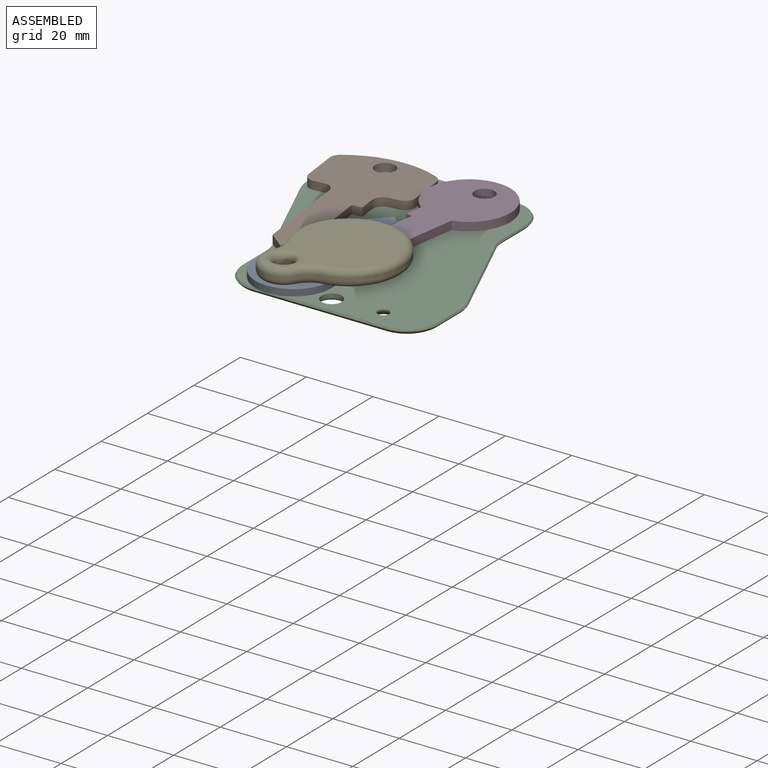
[diagram: assembled view]
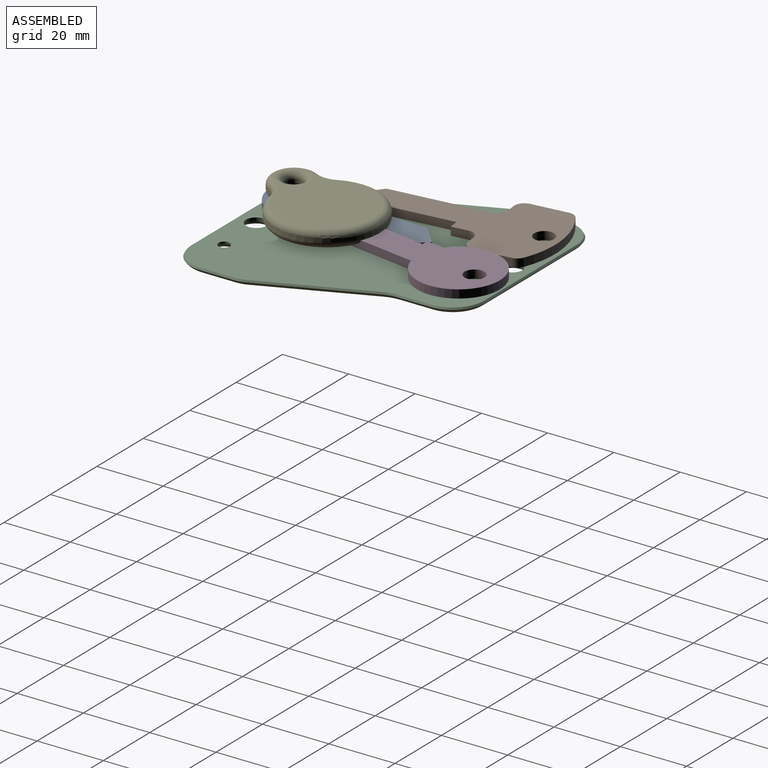
[diagram: assembled view, second angle]
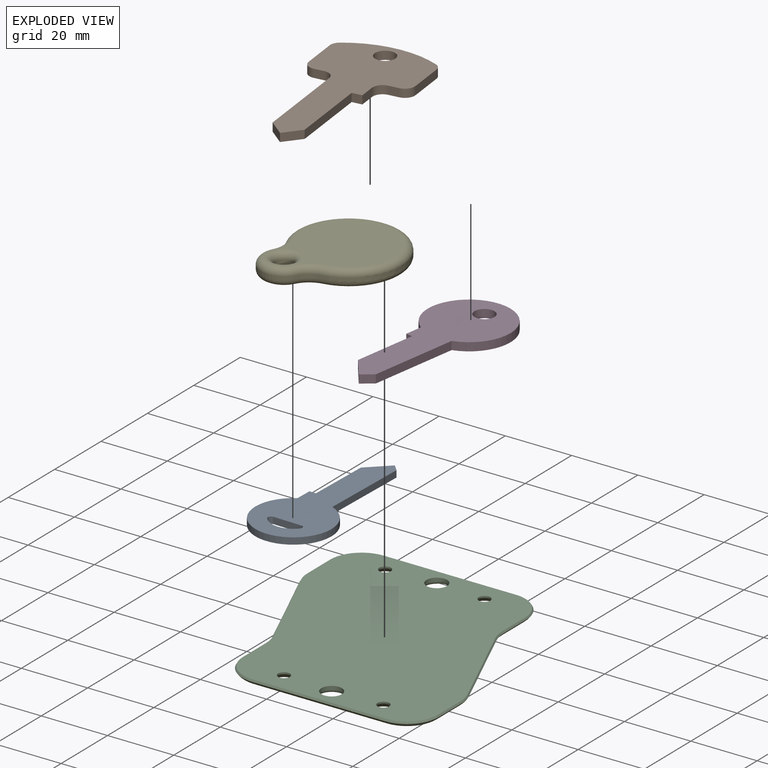
[diagram: exploded view]
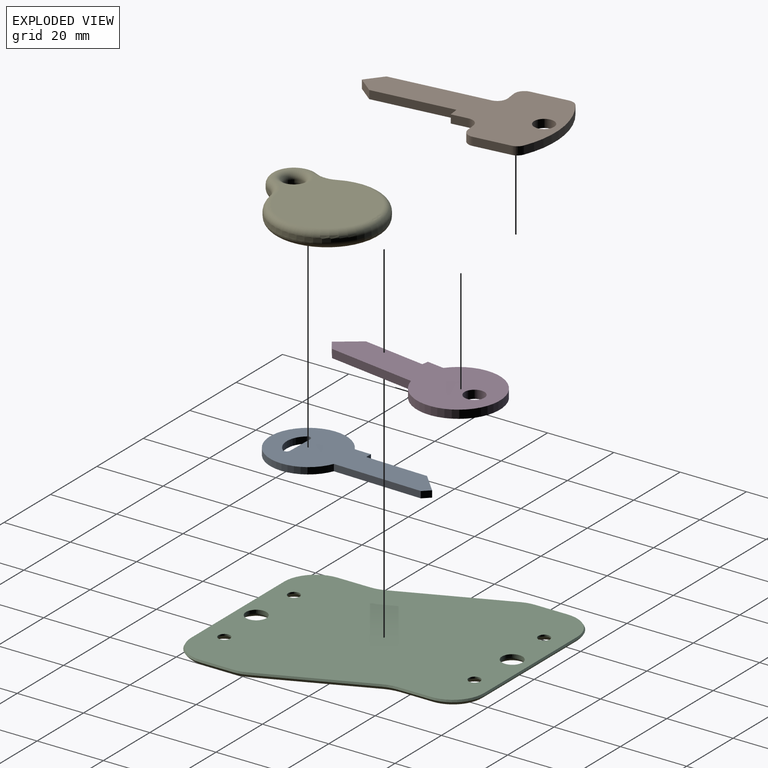
[diagram: exploded view, second angle]
ASSEMBLY  parts=5 mates=6
PART A: 13 faces, bbox 23x51x2 mm
  f0: plane 8.49x2mm, normal (0,1,0), area 17mm2, adj f1,f2,f3,f4
  f1: plane 51x23mm, normal (0,0,-1), area 597.2mm2, adj f0,f2,f3,f5,f6,f7,f8,f9
  f2: cylinder r=1mm len=2mm, axis (0,0,1), area 4.5mm2, adj f0,f1,f4,f5
  f3: cylinder r=1mm len=2mm, axis (0,0,1), area 4.5mm2, adj f0,f1,f4,f5
  f4: plane 51x23mm, normal (0,0,1), area 597.2mm2, adj f0,f2,f3,f5,f6,f7,f8,f9
  f5: cylinder r=6.5mm len=10.03mm, axis (0,0,-1), area 22.9mm2, adj f1,f2,f3,f4
  f6: cylinder r=11.5mm len=23mm, axis (0,0,-1), area 123.7mm2, adj f1,f4,f7,f12
  f7: plane 26.72x2mm, normal (-1,0,0), area 53.4mm2, adj f1,f4,f6,f8
  f8: plane 2x2mm, normal (-0.71,-0.71,0), area 5.7mm2, adj f1,f4,f7,f9
  f9: plane 6x6mm, normal (0.71,-0.71,0), area 17mm2, adj f1,f4,f8,f10
  f10: plane 18.69x2mm, normal (1,0,0), area 37.4mm2, adj f1,f4,f9,f11
  f11: plane 2x2mm, normal (0,-1,0), area 4mm2, adj f1,f4,f10,f12
  f12: plane 5x2mm, normal (1,0,0), area 10mm2, adj f1,f4,f6,f11
PART B: 20 faces, bbox 30x57x2.5 mm
  f0: cylinder r=28mm len=26.88mm, axis (0,0,-1), area 70.1mm2, adj f1,f2,f3,f4
  f1: plane 57x30mm, normal (0,0,-1), area 865.4mm2, adj f0,f2,f3,f5,f6,f7,f8,f9
  f2: cylinder r=3mm len=2.63mm, axis (0,0,1), area 8mm2, adj f0,f1,f4,f5
  f3: cylinder r=3mm len=2.63mm, axis (0,0,1), area 8mm2, adj f0,f1,f4,f6
  f4: plane 57x30mm, normal (0,0,1), area 865.4mm2, adj f0,f2,f3,f5,f6,f7,f8,f9
  f5: plane 10.93x2.5mm, normal (1,0,0), area 27.3mm2, adj f1,f2,f4,f7
  f6: plane 10.93x2.5mm, normal (-1,0,0), area 27.3mm2, adj f1,f3,f4,f8
  f7: cylinder r=3mm len=3mm, axis (0,0,1), area 11.8mm2, adj f1,f4,f5,f9
  f8: cylinder r=3mm len=3mm, axis (0,0,1), area 11.8mm2, adj f1,f4,f6,f10
  f9: plane 3x2.5mm, normal (0,-1,0), area 7.5mm2, adj f1,f4,f7,f11
  f10: plane 3x2.5mm, normal (0,-1,0), area 7.5mm2, adj f1,f4,f8,f12
  f11: cylinder r=3mm len=3mm, axis (0,0,1), area 11.8mm2, adj f1,f4,f9,f13
  f12: cylinder r=3mm len=3mm, axis (0,0,1), area 11.8mm2, adj f1,f4,f10,f14
  f13: plane 5x2.5mm, normal (1,0,0), area 12.5mm2, adj f1,f4,f11,f15
  f14: plane 29.5x2.5mm, normal (-1,0,0), area 73.8mm2, adj f1,f4,f12,f16
  f15: plane 3x2.5mm, normal (0,-1,0), area 7.5mm2, adj f1,f4,f13,f17
  f16: plane 4.5x4.5mm, normal (-0.71,-0.71,0), area 15.9mm2, adj f1,f4,f14,f18
  f17: plane 24.5x2.5mm, normal (1,0,0), area 61.2mm2, adj f1,f4,f15,f18
  f18: plane 4.5x4.5mm, normal (0.71,-0.71,0), area 15.9mm2, adj f1,f4,f16,f17
  f19: cylinder r=3mm len=6mm, axis (0,0,-1), area 47.1mm2, adj f1,f4
PART C: 48 faces, bbox 77x81x3.4 mm
  f0: cylinder r=1.75mm len=3.5mm, axis (0,0,-1), area 5.5mm2, adj f4,f26
  f1: cylinder r=1.75mm len=3.5mm, axis (0,0,-1), area 5.5mm2, adj f4,f27
  f2: cylinder r=1.75mm len=3.5mm, axis (0,0,-1), area 5.5mm2, adj f4,f24
  f3: cylinder r=1.75mm len=3.5mm, axis (0,0,-1), area 5.5mm2, adj f4,f25
  f4: plane 77.89x73.89mm, normal (0,0,1), area 4408.4mm2, adj f0,f1,f2,f3,f6,f7,f32,f33
  f5: plane 73.34x69.34mm, normal (0,0,-1), area 3691.7mm2, adj f8,f9,f10,f11,f12,f13,f14,f15
  f6: cylinder r=3.1mm len=6.2mm, axis (0,0,1), area 19.1mm2, adj f4,f28,f29
  f7: cylinder r=3.1mm len=6.2mm, axis (0,0,1), area 19.1mm2, adj f4,f30,f31
  f8: torus R=7.17mm, axis (0,0,-1), area 41.8mm2, adj f5,f9,f10,f38
  f9: cylinder r=3mm len=40mm, axis (1,0,0), area 120mm2, adj f5,f8,f11,f31,f40
  f10: cylinder r=3mm len=9.95mm, axis (0,-1,0), area 30.9mm2, adj f5,f8,f12,f36
  f11: torus R=7.17mm, axis (0,0,-1), area 41.8mm2, adj f5,f9,f13,f42
  f12: torus R=7.17mm, axis (0,0,-1), area 10.8mm2, adj f5,f10,f14,f34
  f13: cylinder r=3mm len=9.95mm, axis (0,1,0), area 30.9mm2, adj f5,f11,f15,f44
  f14: cylinder r=3mm len=32.24mm, axis (0.39,-0.92,0), area 105.4mm2, adj f5,f12,f16,f32
  f15: torus R=12.83mm, axis (0,0,1), area 14.3mm2, adj f5,f13,f17,f46
  f16: torus R=12.83mm, axis (0,0,1), area 14.3mm2, adj f5,f14,f18,f33
  f17: cylinder r=3mm len=32.24mm, axis (-0.39,0.92,0), area 105.4mm2, adj f5,f15,f19,f47
  f18: cylinder r=3mm len=9.95mm, axis (0,-1,0), area 30.9mm2, adj f5,f16,f20,f35
  f19: torus R=7.17mm, axis (0,0,-1), area 10.8mm2, adj f5,f17,f21,f45
  f20: torus R=7.17mm, axis (0,0,-1), area 41.8mm2, adj f5,f18,f22,f37
  f21: cylinder r=3mm len=9.95mm, axis (0,1,0), area 30.9mm2, adj f5,f19,f23,f43
  f22: cylinder r=3mm len=40mm, axis (1,0,0), area 120mm2, adj f5,f20,f23,f29,f39
  f23: torus R=7.17mm, axis (0,0,-1), area 41.8mm2, adj f5,f21,f22,f41
  f24: cone r=3.25mm half-angle=45deg, axis (0,0,-1), area 33.3mm2, adj f2,f5
  f25: cone r=3.25mm half-angle=45deg, axis (0,0,-1), area 33.3mm2, adj f3,f5
  f26: cone r=3.25mm half-angle=45deg, axis (0,0,-1), area 33.3mm2, adj f0,f5
  f27: cone r=3.25mm half-angle=45deg, axis (0,0,-1), area 33.3mm2, adj f1,f5
  f28: torus R=4.1mm, axis (0,0,1), area 27.3mm2, adj f5,f6,f29
  f29: bspline ~5.9x2.45mm, area 8.3mm2, adj f6,f22,f28
  f30: torus R=4.1mm, axis (0,0,1), area 27.3mm2, adj f5,f7,f31
  f31: bspline ~5.9x2.45mm, area 8.3mm2, adj f7,f9,f30
  f32: plane 31.35x13.66mm, normal (-0.8,-0.34,0.49), area 20.9mm2, adj f4,f14,f33,f34
  f33: cone r=10.55mm half-angle=29.6deg, axis (0,0,1), area 2.6mm2, adj f4,f16,f32,f35
  f34: cone r=9.45mm half-angle=29.6deg, axis (0,0,-1), area 2.4mm2, adj f4,f12,f32,f36
  f35: plane 9.95x0.53mm, normal (-0.87,0,0.49), area 6.1mm2, adj f4,f18,f33,f37
  f36: plane 9.95x0.53mm, normal (-0.87,0,0.49), area 6.1mm2, adj f4,f10,f34,f38
  f37: cone r=9.45mm half-angle=29.6deg, axis (0,0,-1), area 9.3mm2, adj f4,f20,f35,f39
  f38: cone r=9.45mm half-angle=29.6deg, axis (0,0,-1), area 9.3mm2, adj f4,f8,f36,f40
  f39: plane 40x0.53mm, normal (0,-0.87,0.49), area 24.6mm2, adj f4,f22,f37,f41
  f40: plane 40x0.53mm, normal (0,0.87,0.49), area 24.6mm2, adj f4,f9,f38,f42
  f41: cone r=9.45mm half-angle=29.6deg, axis (0,0,-1), area 9.3mm2, adj f4,f23,f39,f43
  f42: cone r=9.45mm half-angle=29.6deg, axis (0,0,-1), area 9.3mm2, adj f4,f11,f40,f44
  f43: plane 9.95x0.53mm, normal (0.87,0,0.49), area 6.1mm2, adj f4,f21,f41,f45
  f44: plane 9.95x0.53mm, normal (0.87,0,0.49), area 6.1mm2, adj f4,f13,f42,f46
  f45: cone r=9.45mm half-angle=29.6deg, axis (0,0,-1), area 2.4mm2, adj f4,f19,f43,f47
  f46: cone r=10.55mm half-angle=29.6deg, axis (0,0,1), area 2.6mm2, adj f4,f15,f44,f47
  f47: plane 31.35x13.66mm, normal (0.8,0.34,0.49), area 20.9mm2, adj f4,f17,f45,f46
PART D: 10 faces, bbox 25x54x2.5 mm
  f0: cylinder r=12.5mm len=25mm, axis (0,0,-1), area 167.8mm2, adj f1,f6,f8,f9
  f1: plane 27.04x2.5mm, normal (-1,0,0), area 67.6mm2, adj f0,f2,f8,f9
  f2: plane 3x3mm, normal (-0.71,-0.71,0), area 10.6mm2, adj f1,f3,f8,f9
  f3: plane 6x6mm, normal (0.71,-0.71,0), area 21.2mm2, adj f2,f4,f8,f9
  f4: plane 19.29x2.5mm, normal (1,0,0), area 48.2mm2, adj f3,f5,f8,f9
  f5: plane 2.5x2mm, normal (0,-1,0), area 5mm2, adj f4,f6,f8,f9
  f6: plane 5.25x2.5mm, normal (1,0,0), area 13.1mm2, adj f0,f5,f8,f9
  f7: cylinder r=3mm len=6mm, axis (0,0,-1), area 47.1mm2, adj f8,f9
  f8: plane 54x25mm, normal (0,0,-1), area 713.2mm2, adj f0,f1,f2,f3,f4,f5,f6,f7
  f9: plane 54x25mm, normal (0,0,1), area 713.2mm2, adj f0,f1,f2,f3,f4,f5,f6,f7
PART E: 17 faces, bbox 34.3x42.7x5 mm
  f0: cylinder r=7mm len=14mm, axis (0,0,-1), area 22mm2, adj f1,f2,f3,f4
  f1: cylinder r=6.5mm len=5.2mm, axis (0,0,-1), area 6mm2, adj f0,f5,f6,f7
  f2: torus R=5mm, axis (0,0,-1), area 61.9mm2, adj f0,f5,f8,f9
  f3: torus R=5mm, axis (0,0,1), area 61.9mm2, adj f0,f6,f10,f11
  f4: cylinder r=6.5mm len=5.2mm, axis (0,0,-1), area 6mm2, adj f0,f7,f9,f11
  f5: torus R=8.5mm, axis (0,0,1), area 21.1mm2, adj f1,f2,f8,f12
  f6: torus R=8.5mm, axis (0,0,-1), area 21.1mm2, adj f1,f3,f10,f13
  f7: cylinder r=16mm len=32mm, axis (0,0,-1), area 79.9mm2, adj f1,f4,f12,f13
  f8: plane 37x28mm, normal (0,0,-1), area 631mm2, adj f2,f5,f9,f12,f14
  f9: torus R=8.5mm, axis (0,0,1), area 21.1mm2, adj f2,f4,f8,f12
  f10: plane 37x28mm, normal (0,0,1), area 631mm2, adj f3,f6,f11,f13,f15
  f11: torus R=8.5mm, axis (0,0,-1), area 21.1mm2, adj f3,f4,f10,f13
  f12: torus R=14mm, axis (0,0,-1), area 239.7mm2, adj f5,f7,f8,f9
  f13: torus R=14mm, axis (0,0,1), area 239.7mm2, adj f6,f7,f10,f11
  f14: torus R=4.85mm, axis (0,0,-1), area 70.6mm2, adj f8,f16
  f15: torus R=4.85mm, axis (0,0,-1), area 70.6mm2, adj f10,f16
  f16: cylinder r=2.85mm len=5.7mm, axis (0,0,-1), area 17.9mm2, adj f14,f15
PLACE A rot(axis=(0,0,1),178.6deg) t=(-0.19,-30.74,2)mm
PLACE B rot(axis=(0,0,1),6.7deg) t=(-15,32.5,2)mm
PLACE C at identity fixed
PLACE D rot(axis=(-0.08,-1,0),180deg) t=(15,32.5,5.48)mm
PLACE E rot(axis=(0,0,1),152.2deg) t=(0,-32.5,4)mm
MATE cylindrical C.f1 <-> D.f7  axis (0,0,-1) through (15,32.5,1.75)mm
MATE cylindrical E.f2 <-> C.f2  axis (0,0,-1) through (0,-32.5,6.5)mm
MATE cylindrical C.f0 <-> B.f19  axis (0,0,1) through (-15,32.5,2)mm
MATE planar C.f4 <-> A.f1  axis (0,0,1) through (7.5,0,2)mm
MATE planar C.f4 <-> B.f1  axis (0,0,1) through (7.5,0,2)mm
MATE planar E.f8 <-> A.f6  axis (0,0,-1) through (8.22,-16.91,4)mm
